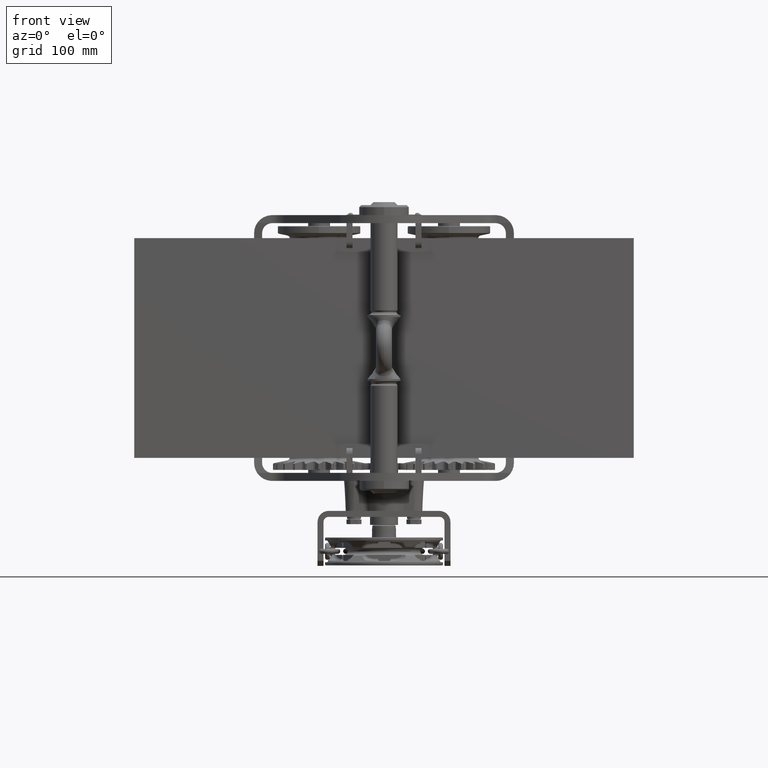
[diagram: clean part render]
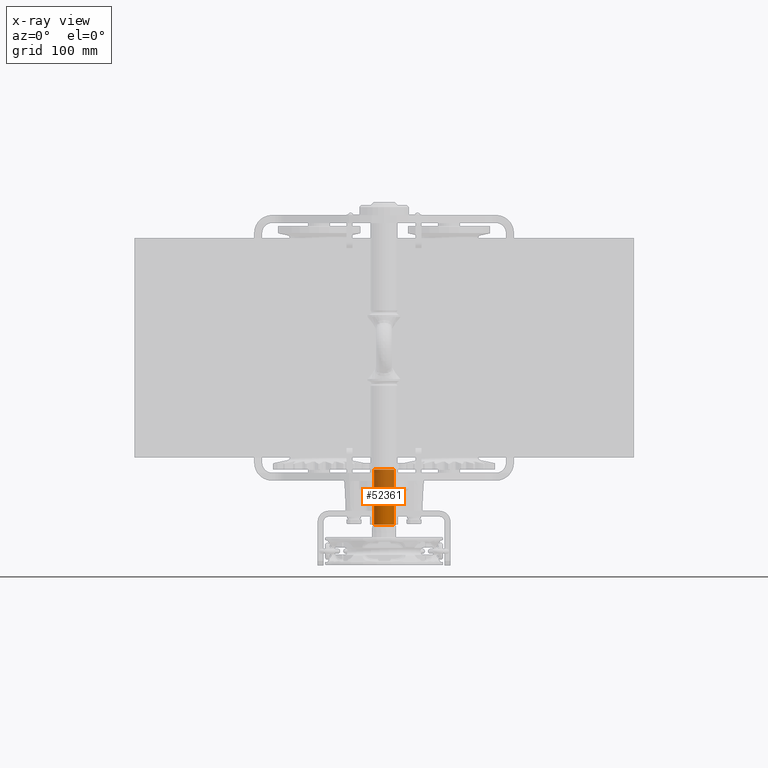
[diagram: x-ray — body ghosted, one internal face saturated and labeled with its STEP entity id]
A machine part, front view, then the same camera in x-ray: the body is ghosted and one INTERNAL B-rep face — a face not visible from any outside direction — is saturated and labeled: STEP entity #52361.
In plain terms, the highlighted cylindrical surface (edge-blend (fillet) strip) has radius 10 mm, axis along (-0, 0, 1).
Its self-contained STEP definition (entity closure, byte-faithful):
#2621 = CARTESIAN_POINT ( 'NONE',  ( 1.715359706475969200E-012, -67.41999999999991600, -213.5000000000017900 ) ) ;
#4642 = CARTESIAN_POINT ( 'NONE',  ( -9.999999999998458100, -67.41999999999991600, -213.5000000000017600 ) ) ;
#7051 = CIRCLE ( 'NONE', #86983, 10.00000000000017400 ) ;
#7271 = DIRECTION ( 'NONE',  ( -1.000000000000000000, 0.0000000000000000000, 2.775557561562843200E-015 ) ) ;
#7611 = CARTESIAN_POINT ( 'NONE',  ( 10.00000000000178500, -67.41999999999990200, -177.0000000000007400 ) ) ;
#8358 = LINE ( 'NONE', #4642, #88433 ) ;
#10529 = ORIENTED_EDGE ( 'NONE', *, *, #24307, .F. ) ;
#11080 = EDGE_CURVE ( 'NONE', #95615, #99370, #8358, .T. ) ;
#13523 = AXIS2_PLACEMENT_3D ( 'NONE', #2621, #33786, #32808 ) ;
#20784 = FACE_OUTER_BOUND ( 'NONE', #81447, .T. ) ;
#24307 = EDGE_CURVE ( 'NONE', #99370, #48419, #88381, .T. ) ;
#27178 = LINE ( 'NONE', #38241, #59800 ) ;
#29984 = CARTESIAN_POINT ( 'NONE',  ( 1.784721428720575700E-012, -67.42000000000099600, -177.0000000000007400 ) ) ;
#32808 = DIRECTION ( 'NONE',  ( 1.000000000000000000, 0.0000000000000000000, -2.775557561562843200E-015 ) ) ;
#33786 = DIRECTION ( 'NONE',  ( -8.844809530763966600E-017, 1.242391792751174400E-016, 1.000000000000000000 ) ) ;
#36497 = CYLINDRICAL_SURFACE ( 'NONE', #13523, 10.00000000000017400 ) ;
#38241 = CARTESIAN_POINT ( 'NONE',  ( 10.00000000000189000, -67.41999999999991600, -213.5000000000018200 ) ) ;
#38459 = DIRECTION ( 'NONE',  ( 1.000000000000000000, 0.0000000000000000000, -4.163336342344264500E-015 ) ) ;
#38572 = ORIENTED_EDGE ( 'NONE', *, *, #89071, .F. ) ;
#39666 = CARTESIAN_POINT ( 'NONE',  ( 10.00000000000206200, -67.42000000000098200, -121.7999999999996800 ) ) ;
#45756 = EDGE_CURVE ( 'NONE', #64291, #48419, #27178, .T. ) ;
#48419 = VERTEX_POINT ( 'NONE', #39666 ) ;
#48526 = ORIENTED_EDGE ( 'NONE', *, *, #11080, .F. ) ;
#52361 = ADVANCED_FACE ( 'NONE', ( #20784 ), #36497, .T. ) ;
#52708 = DIRECTION ( 'NONE',  ( -8.844809530763966600E-017, 1.242391792751174400E-016, 1.000000000000000000 ) ) ;
#53362 = AXIS2_PLACEMENT_3D ( 'NONE', #100204, #52708, #38459 ) ;
#59800 = VECTOR ( 'NONE', #92219, 1000.000000000000000 ) ;
#64291 = VERTEX_POINT ( 'NONE', #7611 ) ;
#77354 = ORIENTED_EDGE ( 'NONE', *, *, #45756, .T. ) ;
#77717 = CARTESIAN_POINT ( 'NONE',  ( -9.999999999998111700, -67.41999999999990200, -121.7999999999996400 ) ) ;
#81447 = EDGE_LOOP ( 'NONE', ( #48526, #38572, #77354, #10529 ) ) ;
#82855 = DIRECTION ( 'NONE',  ( -8.844809530763966600E-017, 1.242391792751174400E-016, 1.000000000000000000 ) ) ;
#86983 = AXIS2_PLACEMENT_3D ( 'NONE', #29984, #99836, #7271 ) ;
#87419 = CARTESIAN_POINT ( 'NONE',  ( -9.999999999998214800, -67.41999999999990200, -177.0000000000007400 ) ) ;
#88381 = CIRCLE ( 'NONE', #53362, 10.00000000000017400 ) ;
#88433 = VECTOR ( 'NONE', #82855, 1000.000000000000000 ) ;
#89071 = EDGE_CURVE ( 'NONE', #64291, #95615, #7051, .T. ) ;
#92219 = DIRECTION ( 'NONE',  ( -8.844809530763966600E-017, 1.242391792751174400E-016, 1.000000000000000000 ) ) ;
#95615 = VERTEX_POINT ( 'NONE', #87419 ) ;
#99370 = VERTEX_POINT ( 'NONE', #77717 ) ;
#99836 = DIRECTION ( 'NONE',  ( 8.844809530763966600E-017, -1.242391792751174400E-016, -1.000000000000000000 ) ) ;
#100204 = CARTESIAN_POINT ( 'NONE',  ( 1.889619156608308900E-012, -67.42000000000098200, -121.7999999999996400 ) ) ;